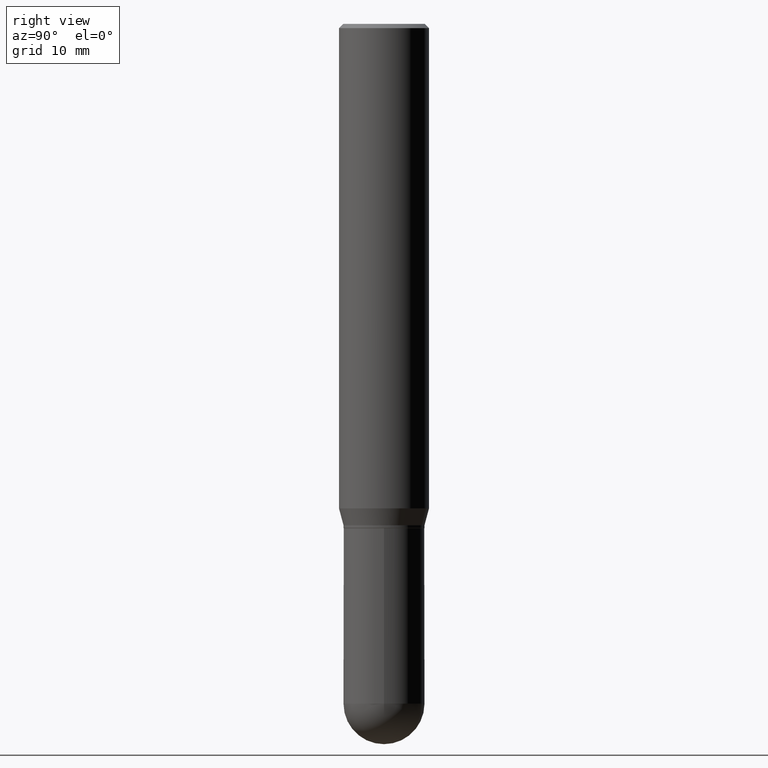
[diagram: clean part render]
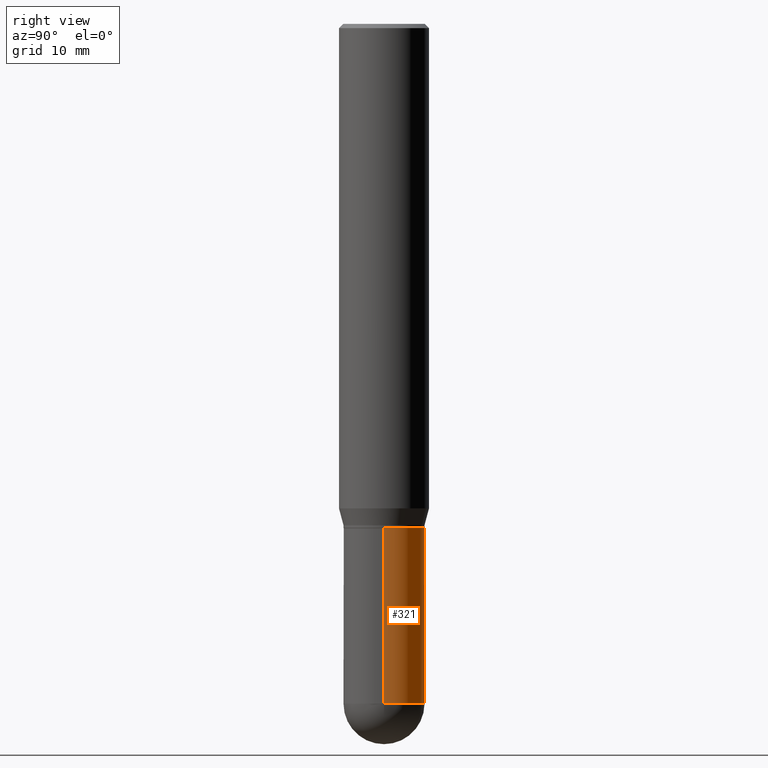
[diagram: same view with one face highlighted and labeled with its STEP entity id]
A machine part, right view. The second image highlights one B-rep face of the part: STEP entity #321.
In plain terms, the highlighted cylindrical surface (partial cylindrical patch) has radius 3.5712 mm, axis along (-0, 0, 1).
Its self-contained STEP definition (entity closure, byte-faithful):
#8 = CARTESIAN_POINT ( 'NONE',  ( -0.1406000000000000028, -6.174923620442310269E-15, -1.750000000000000222 ) ) ;
#13 = VERTEX_POINT ( 'NONE', #300 ) ;
#24 = EDGE_CURVE ( 'NONE', #142, #478, #311, .T. ) ;
#38 = DIRECTION ( 'NONE',  ( -2.445468806185136597E-29, 3.491481338843145583E-15, 1.000000000000000000 ) ) ;
#48 = VERTEX_POINT ( 'NONE', #8 ) ;
#52 = ORIENTED_EDGE ( 'NONE', *, *, #208, .F. ) ;
#84 = AXIS2_PLACEMENT_3D ( 'NONE', #230, #351, #389 ) ;
#97 = CARTESIAN_POINT ( 'NONE',  ( 0.1406000000000000028, -7.091896895458194566E-15, -1.750000000000000222 ) ) ;
#140 = AXIS2_PLACEMENT_3D ( 'NONE', #157, #38, #271 ) ;
#142 = VERTEX_POINT ( 'NONE', #161 ) ;
#151 = DIRECTION ( 'NONE',  ( -2.445468806185136597E-29, 3.491481338843145583E-15, 1.000000000000000000 ) ) ;
#157 = CARTESIAN_POINT ( 'NONE',  ( 0.000000000000000000, 0.000000000000000000, 0.000000000000000000 ) ) ;
#161 = CARTESIAN_POINT ( 'NONE',  ( 0.1406000000000000583, -8.155751259403701439E-15, -2.359399999999999942 ) ) ;
#182 = VECTOR ( 'NONE', #454, 39.37007874015748143 ) ;
#187 = CARTESIAN_POINT ( 'NONE',  ( 5.769839101313211634E-29, -8.237801070866517629E-15, -2.359399999999999942 ) ) ;
#194 = CARTESIAN_POINT ( 'NONE',  ( 9.818045524827470871E-16, 0.1405999999999918426, -2.359400000000000386 ) ) ;
#208 = EDGE_CURVE ( 'NONE', #478, #48, #419, .T. ) ;
#219 = AXIS2_PLACEMENT_3D ( 'NONE', #187, #151, #302 ) ;
#227 = CARTESIAN_POINT ( 'NONE',  ( -0.1406000000000000028, 9.990230864787008809E-16, -6.916022736898399140E-30 ) ) ;
#230 = CARTESIAN_POINT ( 'NONE',  ( 4.279570410823989044E-29, -6.110092342975505460E-15, -1.750000000000000222 ) ) ;
#236 = EDGE_CURVE ( 'NONE', #142, #296, #266, .T. ) ;
#238 = ORIENTED_EDGE ( 'NONE', *, *, #280, .T. ) ;
#254 = DIRECTION ( 'NONE',  ( 1.000000000000000000, -6.982962677686270655E-15, 0.000000000000000000 ) ) ;
#266 = CIRCLE ( 'NONE', #219, 0.1406000000000000305 ) ;
#271 = DIRECTION ( 'NONE',  ( 1.000000000000000000, -6.982962677686268288E-15, 4.876176775795936353E-29 ) ) ;
#277 = LINE ( 'NONE', #227, #307 ) ;
#280 = EDGE_CURVE ( 'NONE', #13, #48, #277, .T. ) ;
#294 = CARTESIAN_POINT ( 'NONE',  ( 5.769839101313211634E-29, -8.237801070866517629E-15, -2.359399999999999942 ) ) ;
#296 = VERTEX_POINT ( 'NONE', #194 ) ;
#300 = CARTESIAN_POINT ( 'NONE',  ( -0.1406000000000000583, -6.174923620442310269E-15, -2.359399999999999942 ) ) ;
#302 = DIRECTION ( 'NONE',  ( 1.000000000000000000, -6.982962677686270655E-15, 0.000000000000000000 ) ) ;
#307 = VECTOR ( 'NONE', #460, 39.37007874015748143 ) ;
#311 = LINE ( 'NONE', #459, #182 ) ;
#321 = ADVANCED_FACE ( 'NONE', ( #387 ), #348, .T. ) ;
#332 = EDGE_LOOP ( 'NONE', ( #446, #238, #52, #441, #485 ) ) ;
#348 = CYLINDRICAL_SURFACE ( 'NONE', #140, 0.1406000000000000028 ) ;
#351 = DIRECTION ( 'NONE',  ( -2.445468806185136597E-29, 3.491481338843145583E-15, 1.000000000000000000 ) ) ;
#369 = DIRECTION ( 'NONE',  ( -2.445468806185136597E-29, 3.491481338843145583E-15, 1.000000000000000000 ) ) ;
#377 = CIRCLE ( 'NONE', #409, 0.1406000000000000305 ) ;
#387 = FACE_OUTER_BOUND ( 'NONE', #332, .T. ) ;
#389 = DIRECTION ( 'NONE',  ( 1.000000000000000000, -6.982962677686265133E-15, 0.000000000000000000 ) ) ;
#409 = AXIS2_PLACEMENT_3D ( 'NONE', #294, #369, #254 ) ;
#419 = CIRCLE ( 'NONE', #84, 0.1406000000000000028 ) ;
#441 = ORIENTED_EDGE ( 'NONE', *, *, #24, .F. ) ;
#446 = ORIENTED_EDGE ( 'NONE', *, *, #494, .T. ) ;
#454 = DIRECTION ( 'NONE',  ( -2.445468806185136877E-29, 3.491481338843145188E-15, 1.000000000000000000 ) ) ;
#459 = CARTESIAN_POINT ( 'NONE',  ( 0.1406000000000000028, -9.818045524826893030E-16, 6.855904546769086274E-30 ) ) ;
#460 = DIRECTION ( 'NONE',  ( -2.445468806185136877E-29, 3.491481338843145188E-15, 1.000000000000000000 ) ) ;
#478 = VERTEX_POINT ( 'NONE', #97 ) ;
#485 = ORIENTED_EDGE ( 'NONE', *, *, #236, .T. ) ;
#494 = EDGE_CURVE ( 'NONE', #296, #13, #377, .T. ) ;